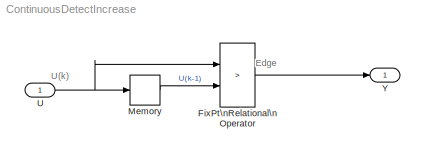
MODEL ContinuousDetectIncrease
KIND model
BLOCK [RelationalOperator] FixPt\nRelational\nOperator
  InputSameDT = off
  Operator = >
  OutDataTypeStr = fixdt(0, 8)
  Ports = [2, 1]
  SID = 3
  ZeroCross = off
BLOCK [Memory] Memory
  LinearizeAsDelay = on
  SID = 7
BLOCK [Inport] U
  IconDisplay = Port number
  SID = 1
BLOCK [Outport] Y
  IconDisplay = Port number
  InitialOutput = 0
  SID = 4
ANNOTATION (root): Edge
ANNOTATION (root): U(k)
LINE FixPt\nRelational\nOperator:1 -> Y:1
LINE Memory:1 -> FixPt\nRelational\nOperator:2
NET U:1 -> FixPt\nRelational\nOperator:1, Memory:1
note: NET lines group one-source signal fan-out (src -> all destinations, sorted); 1:1 wires keep LINE
